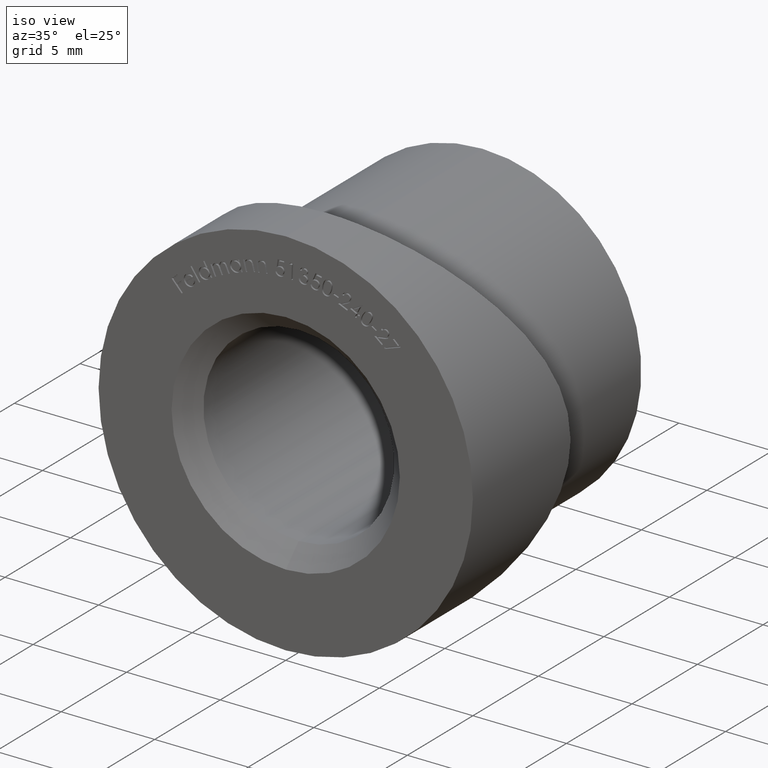
[diagram: clean part render]
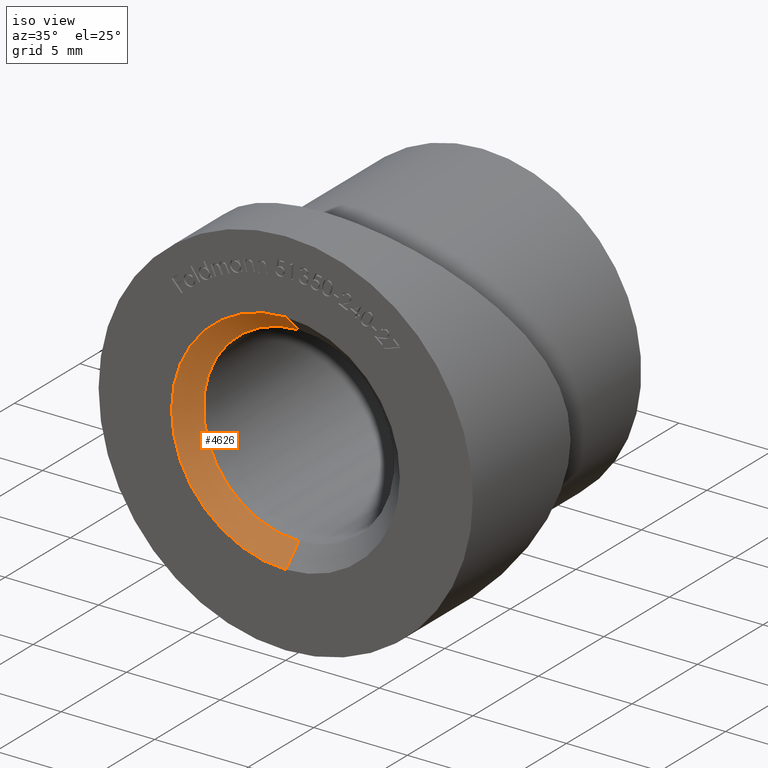
[diagram: same view with one face highlighted and labeled with its STEP entity id]
A machine part, iso view. The second image highlights one B-rep face of the part: STEP entity #4626.
In plain terms, the highlighted conical surface has half-angle 45 deg.
Its self-contained STEP definition (entity closure, byte-faithful):
#931 = EDGE_LOOP ( 'NONE', ( #2134, #9328, #5287, #9420 ) ) ;
#1198 = EDGE_CURVE ( 'NONE', #4094, #12693, #10746, .T. ) ;
#1396 = CARTESIAN_POINT ( 'NONE',  ( 0.0000000000000000000, 0.9999999999999974500, 0.0000000000000000000 ) ) ;
#2134 = ORIENTED_EDGE ( 'NONE', *, *, #3904, .F. ) ;
#2628 = DIRECTION ( 'NONE',  ( 0.0000000000000000000, 0.0000000000000000000, 1.000000000000000000 ) ) ;
#3626 = CARTESIAN_POINT ( 'NONE',  ( 0.0000000000000000000, 0.0000000000000000000, -6.099999999999994300 ) ) ;
#3904 = EDGE_CURVE ( 'NONE', #4094, #8751, #13303, .T. ) ;
#4094 = VERTEX_POINT ( 'NONE', #6312 ) ;
#4626 = ADVANCED_FACE ( 'NONE', ( #11387 ), #5509, .F. ) ;
#4843 = DIRECTION ( 'NONE',  ( 0.0000000000000000000, 0.0000000000000000000, -1.000000000000000000 ) ) ;
#4856 = VECTOR ( 'NONE', #12308, 999.9999999999998900 ) ;
#5287 = ORIENTED_EDGE ( 'NONE', *, *, #11066, .F. ) ;
#5305 = LINE ( 'NONE', #11701, #10471 ) ;
#5509 = CONICAL_SURFACE ( 'NONE', #11336, 6.099999999999994300, 0.7853981633974487200 ) ;
#6109 = DIRECTION ( 'NONE',  ( 0.0000000000000000000, 1.000000000000000000, 0.0000000000000000000 ) ) ;
#6312 = CARTESIAN_POINT ( 'NONE',  ( 0.0000000000000000000, 0.9999999999999974500, 5.099999999999996100 ) ) ;
#7025 = CIRCLE ( 'NONE', #7672, 6.099999999999994300 ) ;
#7672 = AXIS2_PLACEMENT_3D ( 'NONE', #12714, #6109, #13793 ) ;
#8205 = DIRECTION ( 'NONE',  ( -0.0000000000000000000, -1.000000000000000000, -0.0000000000000000000 ) ) ;
#8302 = CARTESIAN_POINT ( 'NONE',  ( 0.0000000000000000000, 0.0000000000000000000, 0.0000000000000000000 ) ) ;
#8751 = VERTEX_POINT ( 'NONE', #13540 ) ;
#9328 = ORIENTED_EDGE ( 'NONE', *, *, #1198, .T. ) ;
#9420 = ORIENTED_EDGE ( 'NONE', *, *, #12222, .F. ) ;
#10177 = CARTESIAN_POINT ( 'NONE',  ( 7.470345474798847400E-016, 0.0000000000000000000, 6.099999999999994300 ) ) ;
#10471 = VECTOR ( 'NONE', #11319, 999.9999999999998900 ) ;
#10746 = LINE ( 'NONE', #10177, #4856 ) ;
#11066 = EDGE_CURVE ( 'NONE', #11640, #12693, #7025, .T. ) ;
#11153 = AXIS2_PLACEMENT_3D ( 'NONE', #1396, #8205, #2628 ) ;
#11319 = DIRECTION ( 'NONE',  ( 0.0000000000000000000, -0.7071067811865472400, -0.7071067811865479100 ) ) ;
#11336 = AXIS2_PLACEMENT_3D ( 'NONE', #8302, #11608, #4843 ) ;
#11387 = FACE_OUTER_BOUND ( 'NONE', #931, .T. ) ;
#11608 = DIRECTION ( 'NONE',  ( -0.0000000000000000000, -1.000000000000000000, -0.0000000000000000000 ) ) ;
#11640 = VERTEX_POINT ( 'NONE', #3626 ) ;
#11701 = CARTESIAN_POINT ( 'NONE',  ( 0.0000000000000000000, 0.0000000000000000000, -6.099999999999994300 ) ) ;
#12222 = EDGE_CURVE ( 'NONE', #8751, #11640, #5305, .T. ) ;
#12308 = DIRECTION ( 'NONE',  ( 8.659560562354937800E-017, -0.7071067811865472400, 0.7071067811865479100 ) ) ;
#12693 = VERTEX_POINT ( 'NONE', #12996 ) ;
#12714 = CARTESIAN_POINT ( 'NONE',  ( 0.0000000000000000000, 0.0000000000000000000, 0.0000000000000000000 ) ) ;
#12996 = CARTESIAN_POINT ( 'NONE',  ( 7.470345474798847400E-016, 0.0000000000000000000, 6.099999999999994300 ) ) ;
#13303 = CIRCLE ( 'NONE', #11153, 5.099999999999996100 ) ;
#13540 = CARTESIAN_POINT ( 'NONE',  ( 6.245698675651496900E-016, 0.9999999999999974500, -5.099999999999996100 ) ) ;
#13793 = DIRECTION ( 'NONE',  ( 0.0000000000000000000, 0.0000000000000000000, 1.000000000000000000 ) ) ;